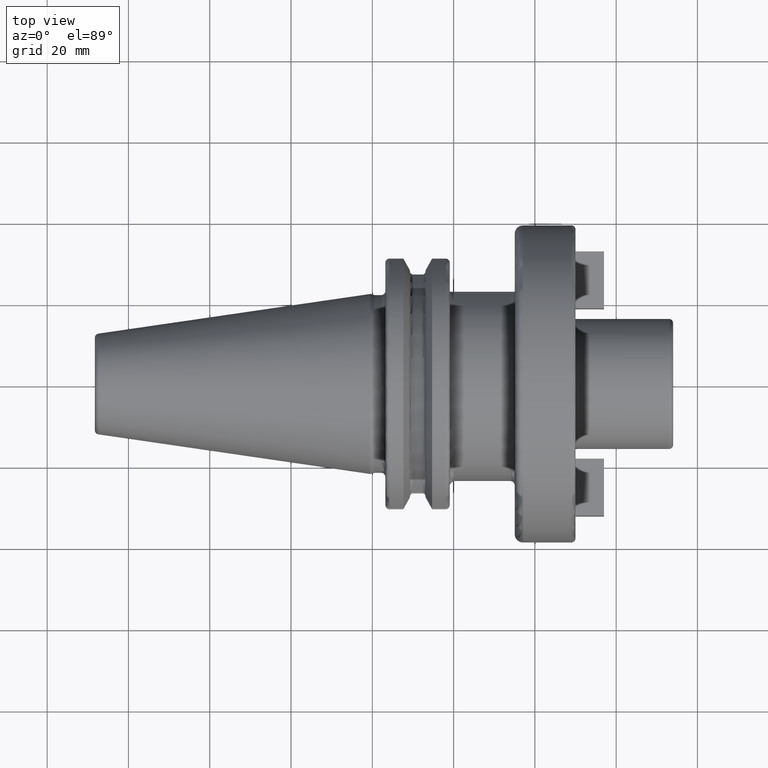
[diagram: clean part render]
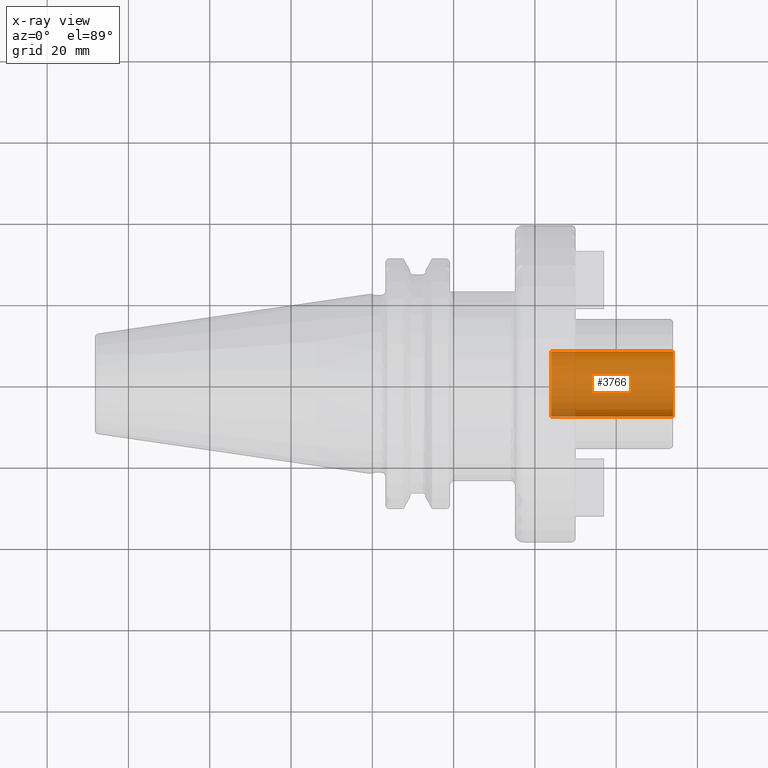
[diagram: x-ray — body ghosted, one internal face saturated and labeled with its STEP entity id]
A machine part, top view, then the same camera in x-ray: the body is ghosted and one INTERNAL B-rep face — a face not visible from any outside direction — is saturated and labeled: STEP entity #3766.
In plain terms, the highlighted cylindrical surface (edge-blend (fillet) strip) has radius 8 mm, axis along (1, 0, 0).
Its self-contained STEP definition (entity closure, byte-faithful):
#3701=CARTESIAN_POINT('',(7.4E1,0.E0,0.E0));
#3702=DIRECTION('',(-1.E0,0.E0,0.E0));
#3703=DIRECTION('',(0.E0,1.E0,0.E0));
#3704=AXIS2_PLACEMENT_3D('',#3701,#3702,#3703);
#3711=DIRECTION('',(-1.E0,0.E0,0.E0));
#3712=VECTOR('',#3711,3.E1);
#3713=CARTESIAN_POINT('',(7.4E1,8.E0,0.E0));
#3714=LINE('',#3713,#3712);
#3715=DIRECTION('',(-1.E0,0.E0,0.E0));
#3716=VECTOR('',#3715,3.E1);
#3717=CARTESIAN_POINT('',(7.4E1,-8.E0,0.E0));
#3718=LINE('',#3717,#3716);
#3719=CARTESIAN_POINT('',(4.4E1,0.E0,0.E0));
#3720=DIRECTION('',(1.E0,0.E0,0.E0));
#3721=DIRECTION('',(0.E0,-1.E0,0.E0));
#3722=AXIS2_PLACEMENT_3D('',#3719,#3720,#3721);
#3739=CARTESIAN_POINT('',(4.4E1,-8.E0,0.E0));
#3740=CARTESIAN_POINT('',(4.4E1,8.E0,0.E0));
#3741=VERTEX_POINT('',#3739);
#3742=VERTEX_POINT('',#3740);
#3743=CARTESIAN_POINT('',(7.4E1,-8.E0,0.E0));
#3744=CARTESIAN_POINT('',(7.4E1,8.E0,0.E0));
#3745=VERTEX_POINT('',#3743);
#3746=VERTEX_POINT('',#3744);
#3751=CARTESIAN_POINT('',(2.758367445015E1,0.E0,0.E0));
#3752=DIRECTION('',(1.E0,0.E0,0.E0));
#3753=DIRECTION('',(0.E0,-1.E0,0.E0));
#3754=AXIS2_PLACEMENT_3D('',#3751,#3752,#3753);
#3755=CYLINDRICAL_SURFACE('',#3754,8.E0);
#3757=ORIENTED_EDGE('',*,*,#3756,.T.);
#3759=ORIENTED_EDGE('',*,*,#3758,.T.);
#3761=ORIENTED_EDGE('',*,*,#3760,.T.);
#3763=ORIENTED_EDGE('',*,*,#3762,.F.);
#3764=EDGE_LOOP('',(#3757,#3759,#3761,#3763));
#3765=FACE_OUTER_BOUND('',#3764,.F.);
#3766=ADVANCED_FACE('',(#3765),#3755,.F.);
#3705=CIRCLE('',#3704,8.E0);
#3723=CIRCLE('',#3722,8.E0);
#3756=EDGE_CURVE('',#3746,#3745,#3705,.T.);
#3758=EDGE_CURVE('',#3745,#3741,#3718,.T.);
#3760=EDGE_CURVE('',#3741,#3742,#3723,.T.);
#3762=EDGE_CURVE('',#3746,#3742,#3714,.T.);